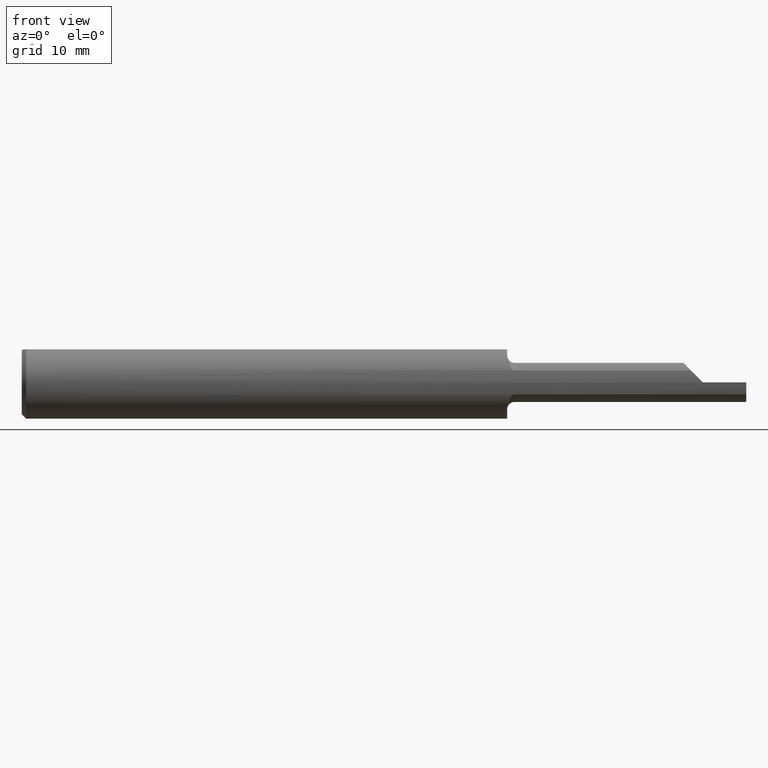
[diagram: clean part render]
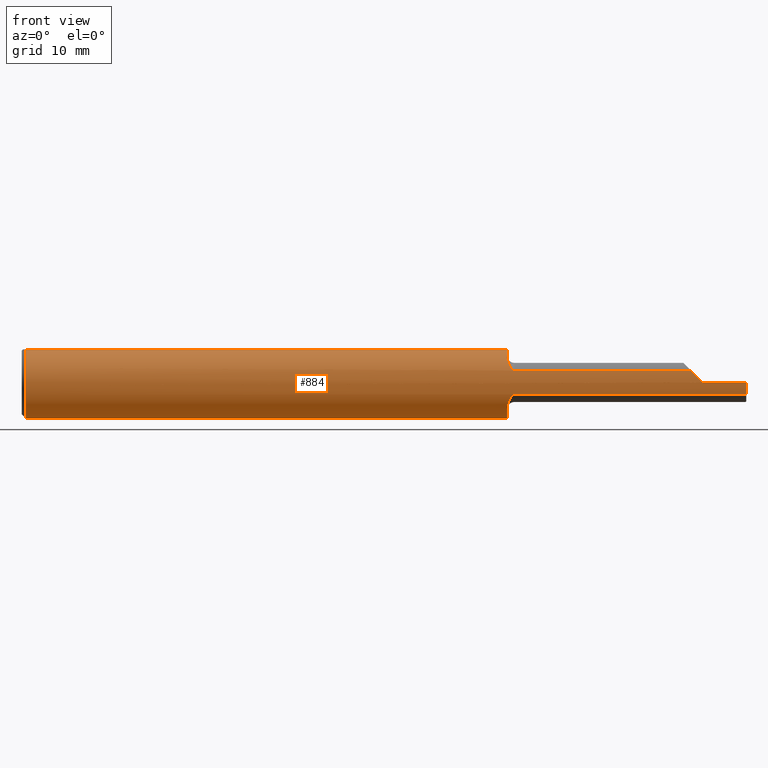
[diagram: same view with one face highlighted and labeled with its STEP entity id]
A machine part, front view. The second image highlights one B-rep face of the part: STEP entity #884.
In plain terms, the highlighted cylindrical surface (edge-blend (fillet) strip) has radius 3.1712 mm, axis along (-1, -0, -0).
Its self-contained STEP definition (entity closure, byte-faithful):
#10 = B_SPLINE_CURVE_WITH_KNOTS ( 'NONE', 3,
 ( #788, #409, #29, #665, #202, #505, #736, #886, #440, #659, #808, #963 ),
 .UNSPECIFIED., .F., .F.,
 ( 4, 2, 2, 2, 2, 4 ),
 ( 0.000000000000000000, 0.0004231261345662541500, 0.0008462522691325083000, 0.001269378403698762396, 0.001480941470981889715, 0.001692504538265017251 ),
 .UNSPECIFIED. ) ;
#14 = CARTESIAN_POINT ( 'NONE',  ( 2.308991305842072794, -0.1178880730380730268, 0.04110869415792675619 ) ) ;
#21 = CARTESIAN_POINT ( 'NONE',  ( 2.350000000000000089, -0.1248499599519359016, 9.999999999961100661E-05 ) ) ;
#29 = CARTESIAN_POINT ( 'NONE',  ( 1.675463484348167054, -0.09455996579217590403, -0.08170711654871570806 ) ) ;
#41 = EDGE_LOOP ( 'NONE', ( #614, #115, #777, #933, #961, #135, #941, #256, #850, #493, #570, #357, #528, #500 ) ) ;
#57 = CARTESIAN_POINT ( 'NONE',  ( 1.675000000000000044, -0.08680804195804191215, 0.08973230383429835200 ) ) ;
#62 = CARTESIAN_POINT ( 'NONE',  ( 0.01499999999999970281, 0.05124158467494929065, 0.1138500000000000068 ) ) ;
#84 = CARTESIAN_POINT ( 'NONE',  ( 0.01499999999999970281, 0.000000000000000000, -0.1248500000000000026 ) ) ;
#108 = CIRCLE ( 'NONE', #367, 0.1248500000000000026 ) ;
#115 = ORIENTED_EDGE ( 'NONE', *, *, #386, .F. ) ;
#119 = CARTESIAN_POINT ( 'NONE',  ( 1.682148820116563304, -0.1099047179638918265, 0.05947070158462895717 ) ) ;
#135 = ORIENTED_EDGE ( 'NONE', *, *, #240, .F. ) ;
#136 = CARTESIAN_POINT ( 'NONE',  ( 1.697138575833329277, -0.1178880730380729991, 0.04110869415792683251 ) ) ;
#161 = DIRECTION ( 'NONE',  ( -1.000000000000000000, -0.000000000000000000, -0.000000000000000000 ) ) ;
#163 = VERTEX_POINT ( 'NONE', #315 ) ;
#167 = LINE ( 'NONE', #321, #696 ) ;
#174 = DIRECTION ( 'NONE',  ( -1.000000000000000000, -0.000000000000000000, -0.000000000000000000 ) ) ;
#175 = EDGE_CURVE ( 'NONE', #310, #521, #167, .T. ) ;
#176 = CARTESIAN_POINT ( 'NONE',  ( 1.675472843869164175, -0.09461185655952933371, 0.08164619401006140142 ) ) ;
#197 = CARTESIAN_POINT ( 'NONE',  ( 1.678561661930270121, -0.1044486834845270024, 0.06860236071768735511 ) ) ;
#202 = CARTESIAN_POINT ( 'NONE',  ( 1.678579630862570671, -0.1044777942651883146, -0.06855471305740289123 ) ) ;
#211 = CARTESIAN_POINT ( 'NONE',  ( 1.699999999999999956, -0.1178880730380729852, 0.04110869415792685333 ) ) ;
#215 = EDGE_CURVE ( 'NONE', #896, #406, #906, .T. ) ;
#226 = VERTEX_POINT ( 'NONE', #569 ) ;
#227 = CARTESIAN_POINT ( 'NONE',  ( 2.308991305842072794, -0.1178880730380730268, 0.04110869415792675619 ) ) ;
#230 =( BOUNDED_CURVE ( )  B_SPLINE_CURVE ( 3, ( #21, #917, #910, #227 ),
 .UNSPECIFIED., .F., .T. ) 
 B_SPLINE_CURVE_WITH_KNOTS ( ( 4, 4 ),
 ( 4.713189941623711299, 5.047913695406924361 ),
 .UNSPECIFIED. ) 
 CURVE ( )  GEOMETRIC_REPRESENTATION_ITEM ( )  RATIONAL_B_SPLINE_CURVE ( ( 1.000000000000000000, 0.9906851070496518474, 0.9906851070496518474, 1.000000000000000000 ) ) 
 REPRESENTATION_ITEM ( '' )  );
#240 = EDGE_CURVE ( 'NONE', #278, #703, #405, .T. ) ;
#250 = EDGE_CURVE ( 'NONE', #521, #163, #732, .T. ) ;
#256 = ORIENTED_EDGE ( 'NONE', *, *, #215, .F. ) ;
#259 = DIRECTION ( 'NONE',  ( 0.000000000000000000, 0.000000000000000000, -1.000000000000000000 ) ) ;
#262 = DIRECTION ( 'NONE',  ( 1.000000000000000000, -0.000000000000000000, -0.000000000000000000 ) ) ;
#271 = DIRECTION ( 'NONE',  ( 0.000000000000000000, 0.000000000000000000, 1.000000000000000000 ) ) ;
#277 = CARTESIAN_POINT ( 'NONE',  ( 2.500000000000000000, 0.000000000000000000, 0.000000000000000000 ) ) ;
#278 = VERTEX_POINT ( 'NONE', #791 ) ;
#310 = VERTEX_POINT ( 'NONE', #641 ) ;
#315 = CARTESIAN_POINT ( 'NONE',  ( 2.350000000000000089, -0.1248499599519359016, 9.999999999961100661E-05 ) ) ;
#321 = CARTESIAN_POINT ( 'NONE',  ( 2.500000000000000000, -0.1248500000000000026, -3.367667473011537583E-17 ) ) ;
#331 = DIRECTION ( 'NONE',  ( -1.000000000000000000, -0.000000000000000000, -0.000000000000000000 ) ) ;
#339 = CARTESIAN_POINT ( 'NONE',  ( 1.688797751365139321, -0.1151316249329346203, 0.04835186460175136536 ) ) ;
#351 = EDGE_CURVE ( 'NONE', #465, #539, #10, .T. ) ;
#357 = ORIENTED_EDGE ( 'NONE', *, *, #927, .T. ) ;
#365 = CARTESIAN_POINT ( 'NONE',  ( 1.694575795023727460, -0.1173638605453972278, 0.04262586039006312916 ) ) ;
#367 = AXIS2_PLACEMENT_3D ( 'NONE', #629, #636, #956 ) ;
#386 = EDGE_CURVE ( 'NONE', #310, #449, #935, .T. ) ;
#397 = VECTOR ( 'NONE', #959, 39.37007874015748143 ) ;
#405 = LINE ( 'NONE', #484, #397 ) ;
#406 = VERTEX_POINT ( 'NONE', #57 ) ;
#409 = CARTESIAN_POINT ( 'NONE',  ( 1.675000000000000488, -0.09084981605085465373, -0.08582224602856410034 ) ) ;
#410 = CARTESIAN_POINT ( 'NONE',  ( 2.500000000000000000, 0.05124158467494929065, 0.1138500000000000068 ) ) ;
#411 = VECTOR ( 'NONE', #161, 39.37007874015748143 ) ;
#415 = VERTEX_POINT ( 'NONE', #62 ) ;
#422 = CARTESIAN_POINT ( 'NONE',  ( 1.675000000000000044, 0.05124158467494929065, 0.1138500000000000068 ) ) ;
#424 = CARTESIAN_POINT ( 'NONE',  ( 2.500000000000000000, -0.1178880730380729852, -0.04110869415792685333 ) ) ;
#426 = EDGE_CURVE ( 'NONE', #278, #406, #829, .T. ) ;
#429 = CARTESIAN_POINT ( 'NONE',  ( 2.500000000000000000, 0.000000000000000000, 0.000000000000000000 ) ) ;
#440 = CARTESIAN_POINT ( 'NONE',  ( 1.690487603854009091, -0.1159976367288706595, -0.04621409347929126415 ) ) ;
#449 = VERTEX_POINT ( 'NONE', #424 ) ;
#455 = LINE ( 'NONE', #776, #411 ) ;
#465 = VERTEX_POINT ( 'NONE', #807 ) ;
#468 = DIRECTION ( 'NONE',  ( 0.000000000000000000, 0.000000000000000000, -1.000000000000000000 ) ) ;
#479 = DIRECTION ( 'NONE',  ( 0.000000000000000000, 0.000000000000000000, 1.000000000000000000 ) ) ;
#482 = LINE ( 'NONE', #410, #735 ) ;
#484 = CARTESIAN_POINT ( 'NONE',  ( 2.062500000000000000, -0.1178880730380729852, 0.04110869415792685333 ) ) ;
#488 = AXIS2_PLACEMENT_3D ( 'NONE', #837, #548, #468 ) ;
#490 = CARTESIAN_POINT ( 'NONE',  ( 1.675000000000000266, -0.09084801577314524645, 0.08582398763750828663 ) ) ;
#493 = ORIENTED_EDGE ( 'NONE', *, *, #951, .T. ) ;
#495 = FACE_OUTER_BOUND ( 'NONE', #41, .T. ) ;
#500 = ORIENTED_EDGE ( 'NONE', *, *, #351, .T. ) ;
#504 = CARTESIAN_POINT ( 'NONE',  ( 1.684345155916292747, -0.1122401308722703883, 0.05488497975249280458 ) ) ;
#505 = CARTESIAN_POINT ( 'NONE',  ( 1.682139659934243525, -0.1098890007994705875, -0.05949592994647465855 ) ) ;
#515 = DIRECTION ( 'NONE',  ( 1.000000000000000000, 0.000000000000000000, 0.000000000000000000 ) ) ;
#521 = VERTEX_POINT ( 'NONE', #710 ) ;
#528 = ORIENTED_EDGE ( 'NONE', *, *, #855, .F. ) ;
#539 = VERTEX_POINT ( 'NONE', #940 ) ;
#548 = DIRECTION ( 'NONE',  ( 1.000000000000000000, -0.000000000000000000, -0.000000000000000000 ) ) ;
#563 = CARTESIAN_POINT ( 'NONE',  ( 1.675000000000000044, -0.08680804195804191215, 0.08973230383429835200 ) ) ;
#567 = DIRECTION ( 'NONE',  ( 0.000000000000000000, 0.000000000000000000, -1.000000000000000000 ) ) ;
#569 = CARTESIAN_POINT ( 'NONE',  ( 0.01499999999999969413, -0.05124158467494929065, 0.1138500000000000068 ) ) ;
#570 = ORIENTED_EDGE ( 'NONE', *, *, #774, .T. ) ;
#583 = DIRECTION ( 'NONE',  ( 0.000000000000000000, 0.000000000000000000, -1.000000000000000000 ) ) ;
#614 = ORIENTED_EDGE ( 'NONE', *, *, #734, .F. ) ;
#629 = CARTESIAN_POINT ( 'NONE',  ( 1.675000000000000044, 0.000000000000000000, 0.000000000000000000 ) ) ;
#636 = DIRECTION ( 'NONE',  ( 1.000000000000000000, 0.000000000000000000, 0.000000000000000000 ) ) ;
#638 = CARTESIAN_POINT ( 'NONE',  ( 1.675000000000000044, 0.000000000000000000, 0.000000000000000000 ) ) ;
#641 = CARTESIAN_POINT ( 'NONE',  ( 2.500000000000000000, -0.1248499999999999471, -3.367667473011537583E-17 ) ) ;
#647 = CARTESIAN_POINT ( 'NONE',  ( 2.350000000000000089, 0.000000000000000000, 0.000000000000000000 ) ) ;
#651 = CARTESIAN_POINT ( 'NONE',  ( 1.690471370292704556, -0.1159916994806585028, 0.04622948612845707850 ) ) ;
#659 = CARTESIAN_POINT ( 'NONE',  ( 1.694569448206967532, -0.1173612273236402659, -0.04263257538414207820 ) ) ;
#665 = CARTESIAN_POINT ( 'NONE',  ( 1.677244443432142518, -0.1013644936721858902, -0.07309500289283984986 ) ) ;
#685 = LINE ( 'NONE', #700, #792 ) ;
#694 = CIRCLE ( 'NONE', #488, 0.1248500000000000026 ) ;
#696 = VECTOR ( 'NONE', #932, 39.37007874015748143 ) ;
#698 = AXIS2_PLACEMENT_3D ( 'NONE', #429, #174, #479 ) ;
#700 = CARTESIAN_POINT ( 'NONE',  ( 2.500000000000000000, -0.05124158467494929065, 0.1138500000000000068 ) ) ;
#703 = VERTEX_POINT ( 'NONE', #14 ) ;
#704 = EDGE_CURVE ( 'NONE', #163, #703, #230, .T. ) ;
#709 = CYLINDRICAL_SURFACE ( 'NONE', #698, 0.1248500000000000026 ) ;
#710 = CARTESIAN_POINT ( 'NONE',  ( 2.350000000000000089, -0.1248499999999999888, -3.367667473011536351E-17 ) ) ;
#715 = DIRECTION ( 'NONE',  ( 1.000000000000000000, 0.000000000000000000, 0.000000000000000000 ) ) ;
#717 = DIRECTION ( 'NONE',  ( 1.000000000000000000, 0.000000000000000000, 0.000000000000000000 ) ) ;
#732 = CIRCLE ( 'NONE', #794, 0.1248500000000000026 ) ;
#734 = EDGE_CURVE ( 'NONE', #449, #539, #455, .T. ) ;
#735 = VECTOR ( 'NONE', #715, 39.37007874015748143 ) ;
#736 = CARTESIAN_POINT ( 'NONE',  ( 1.684341522824309045, -0.1122386781385961430, -0.05488888332692708205 ) ) ;
#740 = EDGE_CURVE ( 'NONE', #896, #226, #685, .T. ) ;
#760 = DIRECTION ( 'NONE',  ( -1.000000000000000000, -0.000000000000000000, -0.000000000000000000 ) ) ;
#763 = VERTEX_POINT ( 'NONE', #84 ) ;
#774 = EDGE_CURVE ( 'NONE', #763, #415, #694, .T. ) ;
#776 = CARTESIAN_POINT ( 'NONE',  ( 2.062500000000000000, -0.1178880730380729852, -0.04110869415792685333 ) ) ;
#777 = ORIENTED_EDGE ( 'NONE', *, *, #175, .T. ) ;
#788 = CARTESIAN_POINT ( 'NONE',  ( 1.675000000000000044, -0.08680804195804191215, -0.08973230383429835200 ) ) ;
#789 = CARTESIAN_POINT ( 'NONE',  ( 1.675000000000000044, -0.05124158467494927677, 0.1138500000000000068 ) ) ;
#791 = CARTESIAN_POINT ( 'NONE',  ( 1.699999999999999956, -0.1178880730380729852, 0.04110869415792685333 ) ) ;
#792 = VECTOR ( 'NONE', #760, 39.37007874015748143 ) ;
#794 = AXIS2_PLACEMENT_3D ( 'NONE', #647, #331, #271 ) ;
#796 = CIRCLE ( 'NONE', #957, 0.1248500000000000026 ) ;
#807 = CARTESIAN_POINT ( 'NONE',  ( 1.675000000000000044, -0.08680804195804191215, -0.08973230383429835200 ) ) ;
#808 = CARTESIAN_POINT ( 'NONE',  ( 1.697146851094465392, -0.1178880730380730130, -0.04110869415792674925 ) ) ;
#829 = B_SPLINE_CURVE_WITH_KNOTS ( 'NONE', 3,
 ( #211, #136, #365, #651, #339, #504, #119, #197, #875, #176, #490, #563 ),
 .UNSPECIFIED., .F., .F.,
 ( 4, 2, 2, 2, 2, 4 ),
 ( 0.000000000000000000, 0.0002139781332481023612, 0.0004279562664962047224, 0.0008559125329924097700, 0.001283868799488614709, 0.001711825065984819974 ),
 .UNSPECIFIED. ) ;
#837 = CARTESIAN_POINT ( 'NONE',  ( 0.01499999999999970281, 0.000000000000000000, 0.000000000000000000 ) ) ;
#844 = VERTEX_POINT ( 'NONE', #422 ) ;
#850 = ORIENTED_EDGE ( 'NONE', *, *, #740, .T. ) ;
#855 = EDGE_CURVE ( 'NONE', #465, #844, #108, .T. ) ;
#875 = CARTESIAN_POINT ( 'NONE',  ( 1.677257066675622577, -0.1013963922970315401, 0.07304981880275966677 ) ) ;
#884 = ADVANCED_FACE ( 'NONE', ( #495 ), #709, .T. ) ;
#886 = CARTESIAN_POINT ( 'NONE',  ( 1.688805720551186162, -0.1151363458569193837, -0.04834088676794719153 ) ) ;
#896 = VERTEX_POINT ( 'NONE', #789 ) ;
#906 = CIRCLE ( 'NONE', #973, 0.1248500000000000026 ) ;
#910 = CARTESIAN_POINT ( 'NONE',  ( 2.322206397681024992, -0.1224963014591190363, 0.02789360231897465570 ) ) ;
#917 = CARTESIAN_POINT ( 'NONE',  ( 2.336004490154644841, -0.1248387500886322388, 0.01409550984535482172 ) ) ;
#927 = EDGE_CURVE ( 'NONE', #415, #844, #482, .T. ) ;
#932 = DIRECTION ( 'NONE',  ( -1.000000000000000000, -0.000000000000000000, -0.000000000000000000 ) ) ;
#933 = ORIENTED_EDGE ( 'NONE', *, *, #250, .T. ) ;
#935 = CIRCLE ( 'NONE', #968, 0.1248500000000000026 ) ;
#940 = CARTESIAN_POINT ( 'NONE',  ( 1.699999999999999956, -0.1178880730380729852, -0.04110869415792685333 ) ) ;
#941 = ORIENTED_EDGE ( 'NONE', *, *, #426, .T. ) ;
#943 = CARTESIAN_POINT ( 'NONE',  ( 0.01499999999999970281, 0.000000000000000000, 0.000000000000000000 ) ) ;
#951 = EDGE_CURVE ( 'NONE', #226, #763, #796, .T. ) ;
#956 = DIRECTION ( 'NONE',  ( 0.000000000000000000, 0.000000000000000000, -1.000000000000000000 ) ) ;
#957 = AXIS2_PLACEMENT_3D ( 'NONE', #943, #262, #567 ) ;
#959 = DIRECTION ( 'NONE',  ( 1.000000000000000000, 0.000000000000000000, 0.000000000000000000 ) ) ;
#961 = ORIENTED_EDGE ( 'NONE', *, *, #704, .T. ) ;
#963 = CARTESIAN_POINT ( 'NONE',  ( 1.699999999999999956, -0.1178880730380729852, -0.04110869415792685333 ) ) ;
#968 = AXIS2_PLACEMENT_3D ( 'NONE', #277, #515, #583 ) ;
#973 = AXIS2_PLACEMENT_3D ( 'NONE', #638, #717, #259 ) ;